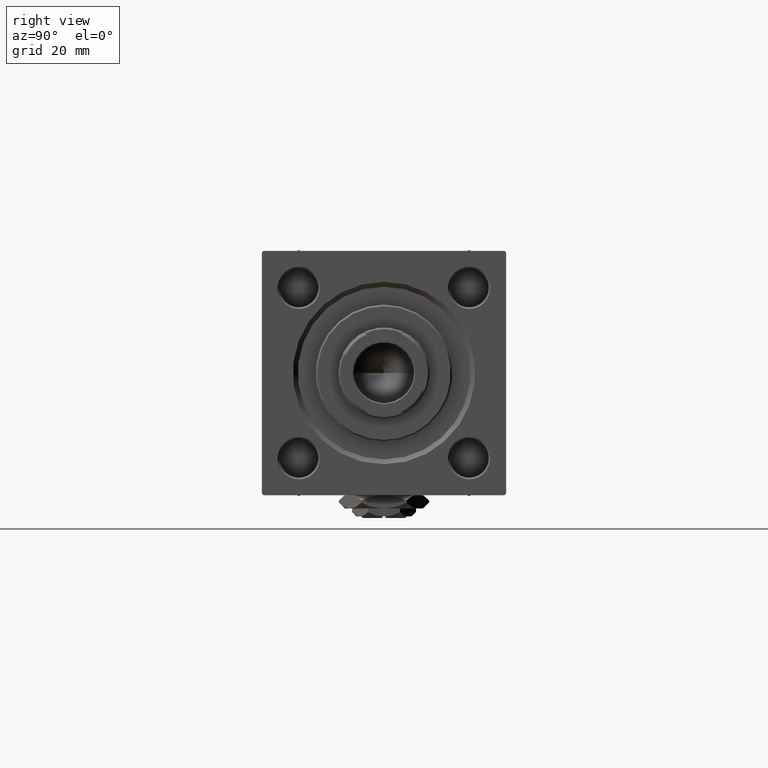
[diagram: clean part render]
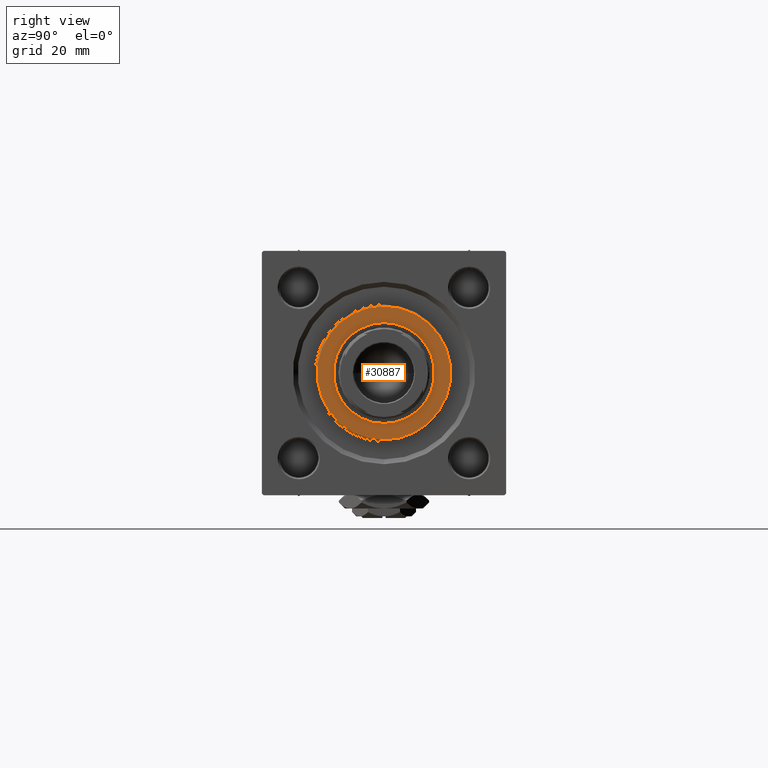
[diagram: same view with one face highlighted and labeled with its STEP entity id]
A machine part, right view. The second image highlights one B-rep face of the part: STEP entity #30887.
In plain terms, the highlighted planar face has unit normal (1, 0, 0).
Its self-contained STEP definition (entity closure, byte-faithful):
#899 = DIRECTION ( 'NONE',  ( 0.000000000000000000, 0.000000000000000000, 1.000000000000000000 ) ) ;
#1443 = EDGE_CURVE ( 'NONE', #9496, #21230, #12720, .T. ) ;
#1819 = DIRECTION ( 'NONE',  ( 1.000000000000000000, 0.000000000000000000, 0.000000000000000000 ) ) ;
#2367 = CARTESIAN_POINT ( 'NONE',  ( 15.50000000000000000, 0.000000000000000000, 37.69999999999999574 ) ) ;
#2515 = ORIENTED_EDGE ( 'NONE', *, *, #25195, .F. ) ;
#4491 = CIRCLE ( 'NONE', #12932, 15.50000000000000000 ) ;
#7275 = DIRECTION ( 'NONE',  ( 0.000000000000000000, 0.000000000000000000, 1.000000000000000000 ) ) ;
#9496 = VERTEX_POINT ( 'NONE', #16839 ) ;
#12720 = CIRCLE ( 'NONE', #37218, 20.49999999999999645 ) ;
#12932 = AXIS2_PLACEMENT_3D ( 'NONE', #13261, #46035, #25937 ) ;
#13261 = CARTESIAN_POINT ( 'NONE',  ( 0.000000000000000000, 0.000000000000000000, 37.69999999999999574 ) ) ;
#13890 = CARTESIAN_POINT ( 'NONE',  ( 0.000000000000000000, 0.000000000000000000, 37.69999999999999574 ) ) ;
#16839 = CARTESIAN_POINT ( 'NONE',  ( -20.49999999999999645, 0.000000000000000000, 37.69999999999999574 ) ) ;
#17188 = EDGE_LOOP ( 'NONE', ( #35715, #17736 ) ) ;
#17251 = VERTEX_POINT ( 'NONE', #27284 ) ;
#17736 = ORIENTED_EDGE ( 'NONE', *, *, #38236, .T. ) ;
#17919 = CARTESIAN_POINT ( 'NONE',  ( 0.000000000000000000, 0.000000000000000000, 37.69999999999999574 ) ) ;
#18623 = FACE_OUTER_BOUND ( 'NONE', #17188, .T. ) ;
#19144 = CARTESIAN_POINT ( 'NONE',  ( 0.000000000000000000, 0.000000000000000000, 37.69999999999999574 ) ) ;
#21018 = AXIS2_PLACEMENT_3D ( 'NONE', #17919, #38027, #1819 ) ;
#21230 = VERTEX_POINT ( 'NONE', #41184 ) ;
#23370 = DIRECTION ( 'NONE',  ( 1.000000000000000000, 0.000000000000000000, 0.000000000000000000 ) ) ;
#23464 = VERTEX_POINT ( 'NONE', #2367 ) ;
#25191 = CARTESIAN_POINT ( 'NONE',  ( 0.000000000000000000, 0.000000000000000000, 37.69999999999999574 ) ) ;
#25195 = EDGE_CURVE ( 'NONE', #23464, #17251, #4491, .T. ) ;
#25937 = DIRECTION ( 'NONE',  ( 1.000000000000000000, 0.000000000000000000, 0.000000000000000000 ) ) ;
#27284 = CARTESIAN_POINT ( 'NONE',  ( -15.50000000000000000, 1.898202538678397557E-15, 37.69999999999999574 ) ) ;
#28713 = EDGE_LOOP ( 'NONE', ( #2515, #33716 ) ) ;
#29734 = FACE_BOUND ( 'NONE', #28713, .T. ) ;
#29996 = DIRECTION ( 'NONE',  ( 0.000000000000000000, 0.000000000000000000, 1.000000000000000000 ) ) ;
#30887 = ADVANCED_FACE ( 'NONE', ( #29734, #18623 ), #45874, .T. ) ;
#32019 = CIRCLE ( 'NONE', #21018, 20.49999999999999645 ) ;
#33716 = ORIENTED_EDGE ( 'NONE', *, *, #37779, .F. ) ;
#35715 = ORIENTED_EDGE ( 'NONE', *, *, #1443, .T. ) ;
#37218 = AXIS2_PLACEMENT_3D ( 'NONE', #19144, #7275, #23370 ) ;
#37779 = EDGE_CURVE ( 'NONE', #17251, #23464, #52162, .T. ) ;
#38027 = DIRECTION ( 'NONE',  ( 0.000000000000000000, 0.000000000000000000, 1.000000000000000000 ) ) ;
#38236 = EDGE_CURVE ( 'NONE', #21230, #9496, #32019, .T. ) ;
#41184 = CARTESIAN_POINT ( 'NONE',  ( 20.49999999999999645, 2.541142108230757480E-15, 37.69999999999999574 ) ) ;
#43569 = AXIS2_PLACEMENT_3D ( 'NONE', #13890, #29996, #46132 ) ;
#44517 = DIRECTION ( 'NONE',  ( 1.000000000000000000, 0.000000000000000000, 0.000000000000000000 ) ) ;
#45874 = PLANE ( 'NONE',  #43569 ) ;
#46035 = DIRECTION ( 'NONE',  ( 0.000000000000000000, 0.000000000000000000, 1.000000000000000000 ) ) ;
#46132 = DIRECTION ( 'NONE',  ( 1.000000000000000000, 0.000000000000000000, -0.000000000000000000 ) ) ;
#50570 = AXIS2_PLACEMENT_3D ( 'NONE', #25191, #899, #44517 ) ;
#52162 = CIRCLE ( 'NONE', #50570, 15.50000000000000000 ) ;